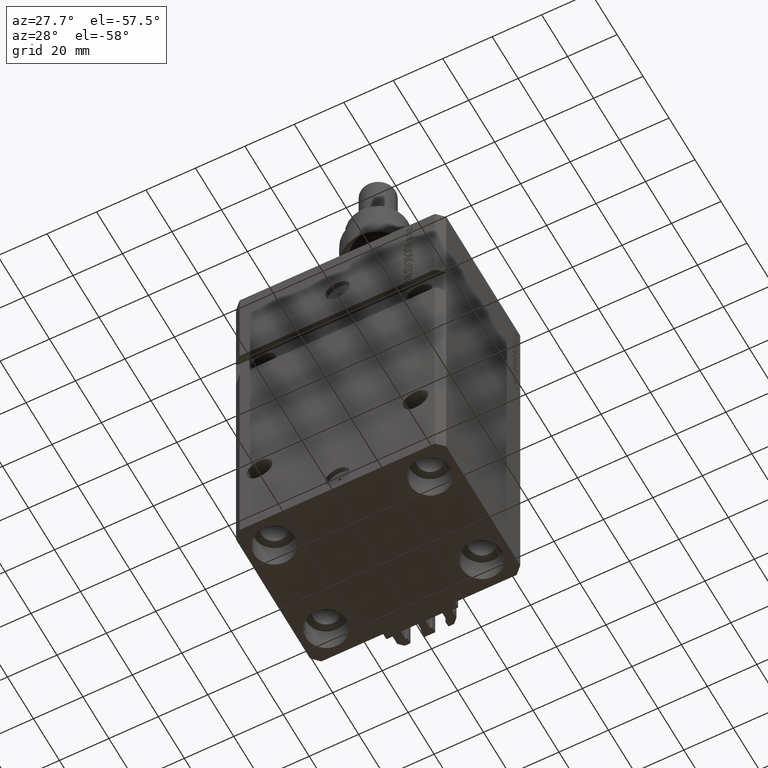
[diagram: clean part render]
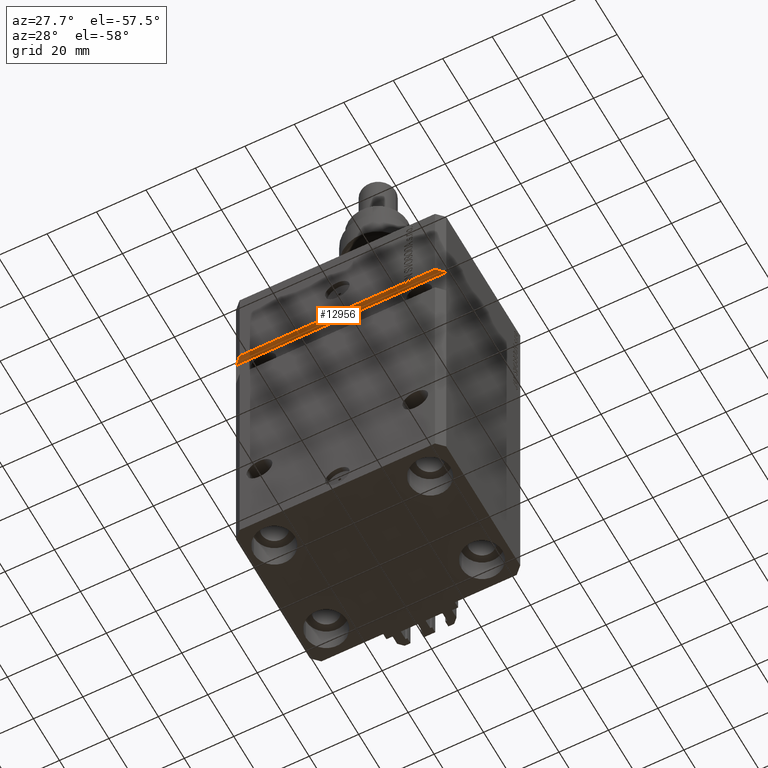
[diagram: same view with one face highlighted and labeled with its STEP entity id]
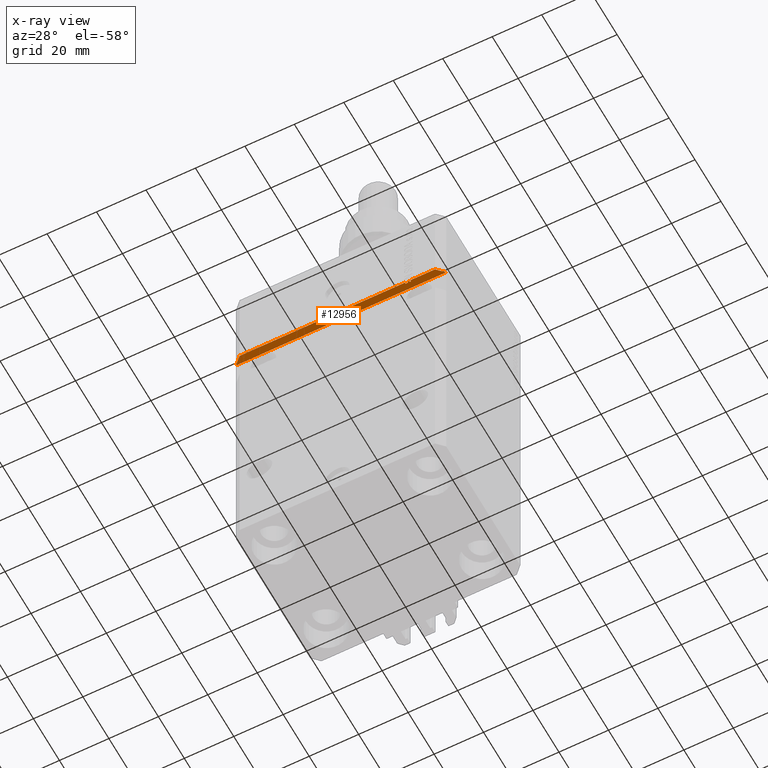
[diagram: x-ray of the same camera — body ghosted, the highlighted face saturated]
A machine part, auxiliary view. The second image highlights one B-rep face of the part: STEP entity #12956.
The next image is the same camera in x-ray: the body ghosted, the highlighted face saturated — about 0% of this face is hidden behind the body in this view.
In plain terms, the highlighted planar face has unit normal (-0, -0, 1).
Its self-contained STEP definition (entity closure, byte-faithful):
#318 = CARTESIAN_POINT ( 'NONE',  ( 2.902851328095173054E-15, -30.99999999999997868, -37.00000000000000000 ) ) ;
#450 = LINE ( 'NONE', #24657, #21044 ) ;
#2197 = VERTEX_POINT ( 'NONE', #7917 ) ;
#2637 = LINE ( 'NONE', #21955, #5223 ) ;
#3145 = DIRECTION ( 'NONE',  ( -2.352167425053553784E-16, 1.000000000000000000, -9.600847180395937970E-33 ) ) ;
#3343 = EDGE_CURVE ( 'NONE', #4759, #2197, #450, .T. ) ;
#3735 = FACE_OUTER_BOUND ( 'NONE', #23488, .T. ) ;
#4397 = EDGE_CURVE ( 'NONE', #6550, #30163, #48881, .T. ) ;
#4692 = DIRECTION ( 'NONE',  ( -1.000000000000000000, 0.000000000000000000, -8.163404592832029035E-17 ) ) ;
#4759 = VERTEX_POINT ( 'NONE', #24893 ) ;
#4836 = LINE ( 'NONE', #29547, #9715 ) ;
#5223 = VECTOR ( 'NONE', #3145, 1000.000000000000000 ) ;
#5287 = VECTOR ( 'NONE', #13719, 1000.000000000000000 ) ;
#5556 = LINE ( 'NONE', #21000, #38172 ) ;
#5601 = VECTOR ( 'NONE', #4692, 1000.000000000000000 ) ;
#5893 = CARTESIAN_POINT ( 'NONE',  ( 2.902851328095173054E-15, -30.99999999999997868, -37.00000000000000000 ) ) ;
#6119 = CARTESIAN_POINT ( 'NONE',  ( 42.50000000000001421, -31.49999999999999289, -37.00000000000000000 ) ) ;
#6550 = VERTEX_POINT ( 'NONE', #16342 ) ;
#7917 = CARTESIAN_POINT ( 'NONE',  ( 28.43744795748433418, -30.99999999999999289, -37.00000000000000000 ) ) ;
#8249 = ORIENTED_EDGE ( 'NONE', *, *, #33262, .F. ) ;
#8431 = ORIENTED_EDGE ( 'NONE', *, *, #18452, .T. ) ;
#9210 = LINE ( 'NONE', #6119, #33813 ) ;
#9695 = CARTESIAN_POINT ( 'NONE',  ( -39.50000000000001421, -31.50000000000000000, -37.00000000000000711 ) ) ;
#9715 = VECTOR ( 'NONE', #40362, 1000.000000000000000 ) ;
#9750 = VECTOR ( 'NONE', #13036, 1000.000000000000000 ) ;
#9764 = AXIS2_PLACEMENT_3D ( 'NONE', #27674, #31045, #27175 ) ;
#9965 = VECTOR ( 'NONE', #15123, 1000.000000000000000 ) ;
#10459 = LINE ( 'NONE', #14316, #33680 ) ;
#10642 = CARTESIAN_POINT ( 'NONE',  ( 29.04545454545453254, -30.99999999999999289, -37.00000000000000000 ) ) ;
#12034 = VECTOR ( 'NONE', #33970, 1000.000000000000000 ) ;
#12391 = VERTEX_POINT ( 'NONE', #36595 ) ;
#12547 = DIRECTION ( 'NONE',  ( -2.352167425053553784E-16, 1.000000000000000000, -9.600847180395937970E-33 ) ) ;
#12650 = CARTESIAN_POINT ( 'NONE',  ( -42.50000000000001421, -28.50000000000000711, -37.00000000000000711 ) ) ;
#12879 = CARTESIAN_POINT ( 'NONE',  ( 29.04545454545453254, -30.99999999999999289, -37.00000000000000000 ) ) ;
#12956 = ADVANCED_FACE ( 'NONE', ( #3735 ), #50606, .F. ) ;
#13036 = DIRECTION ( 'NONE',  ( -1.000000000000000000, 0.000000000000000000, -8.163404592832029035E-17 ) ) ;
#13241 = VERTEX_POINT ( 'NONE', #29716 ) ;
#13508 = ORIENTED_EDGE ( 'NONE', *, *, #13671, .T. ) ;
#13671 = EDGE_CURVE ( 'NONE', #31694, #45046, #10459, .T. ) ;
#13719 = DIRECTION ( 'NONE',  ( -1.000000000000000000, -1.632680918566406054E-16, -8.163404592832030268E-17 ) ) ;
#13742 = ORIENTED_EDGE ( 'NONE', *, *, #17534, .T. ) ;
#14316 = CARTESIAN_POINT ( 'NONE',  ( 42.50000000000001421, -31.49999999999999289, -37.00000000000000000 ) ) ;
#14998 = CARTESIAN_POINT ( 'NONE',  ( 29.45454545454544260, -31.49999999999999289, -37.00000000000000000 ) ) ;
#15123 = DIRECTION ( 'NONE',  ( -0.7071067811865471286, 0.7071067811865479058, -5.772398745160930101E-17 ) ) ;
#16007 = EDGE_CURVE ( 'NONE', #12391, #27717, #42425, .T. ) ;
#16342 = CARTESIAN_POINT ( 'NONE',  ( 29.45454545454544260, -30.99999999999997868, -37.00000000000000000 ) ) ;
#16870 = CARTESIAN_POINT ( 'NONE',  ( 27.36912325285895164, -30.99999999999998579, -36.99999999999999289 ) ) ;
#17534 = EDGE_CURVE ( 'NONE', #30163, #21956, #45918, .T. ) ;
#17565 = EDGE_CURVE ( 'NONE', #2197, #32790, #35630, .T. ) ;
#18452 = EDGE_CURVE ( 'NONE', #21956, #4759, #44977, .T. ) ;
#19839 = ORIENTED_EDGE ( 'NONE', *, *, #42226, .T. ) ;
#20355 = CARTESIAN_POINT ( 'NONE',  ( 29.04545454545453254, -31.49999999999999289, -37.00000000000000000 ) ) ;
#21000 = CARTESIAN_POINT ( 'NONE',  ( 39.50000000000000000, -31.50000000000000711, -37.00000000000000711 ) ) ;
#21044 = VECTOR ( 'NONE', #12547, 1000.000000000000000 ) ;
#21259 = DIRECTION ( 'NONE',  ( -0.7071067811865483499, -0.7071067811865466846, -5.772398745160942427E-17 ) ) ;
#21955 = CARTESIAN_POINT ( 'NONE',  ( 29.45454545454544260, -30.99999999999999289, -37.00000000000000000 ) ) ;
#21956 = VERTEX_POINT ( 'NONE', #20355 ) ;
#22467 = CARTESIAN_POINT ( 'NONE',  ( 42.50000000000001421, -28.49999999999999289, -37.00000000000000000 ) ) ;
#23340 = EDGE_CURVE ( 'NONE', #13241, #12391, #9210, .T. ) ;
#23488 = EDGE_LOOP ( 'NONE', ( #48289, #13508, #41526, #45656, #13742, #8431, #34846, #49594, #19839, #36094, #50614, #8249 ) ) ;
#24110 = CARTESIAN_POINT ( 'NONE',  ( 39.50000000000000711, -31.49999999999999289, -37.00000000000000000 ) ) ;
#24657 = CARTESIAN_POINT ( 'NONE',  ( 28.43744795748433418, -30.99999999999999289, -37.00000000000000000 ) ) ;
#24893 = CARTESIAN_POINT ( 'NONE',  ( 28.43744795748431287, -31.49999999999999289, -37.00000000000000000 ) ) ;
#25696 = DIRECTION ( 'NONE',  ( -1.000000000000000000, -1.632680918566406054E-16, -8.163404592832030268E-17 ) ) ;
#26352 = DIRECTION ( 'NONE',  ( 2.352167425053553784E-16, -1.000000000000000000, 9.600847180395937970E-33 ) ) ;
#27175 = DIRECTION ( 'NONE',  ( 1.000000000000000000, 0.000000000000000000, 8.163404592832029035E-17 ) ) ;
#27674 = CARTESIAN_POINT ( 'NONE',  ( 42.50000000000001421, -28.49999999999999289, -37.00000000000000000 ) ) ;
#27717 = VERTEX_POINT ( 'NONE', #12650 ) ;
#29547 = CARTESIAN_POINT ( 'NONE',  ( 27.36912325285897296, -30.99999999999999289, -37.00000000000000000 ) ) ;
#29716 = CARTESIAN_POINT ( 'NONE',  ( 27.36912325285902270, -31.49999999999999289, -37.00000000000000711 ) ) ;
#30040 = DIRECTION ( 'NONE',  ( -1.000000000000000000, -1.632680918566406054E-16, -8.163404592832030268E-17 ) ) ;
#30163 = VERTEX_POINT ( 'NONE', #12879 ) ;
#31045 = DIRECTION ( 'NONE',  ( -8.163404592832029035E-17, -9.600847180396128185E-33, 1.000000000000000000 ) ) ;
#31694 = VERTEX_POINT ( 'NONE', #24110 ) ;
#32116 = EDGE_CURVE ( 'NONE', #45046, #6550, #2637, .T. ) ;
#32790 = VERTEX_POINT ( 'NONE', #16870 ) ;
#32881 = EDGE_CURVE ( 'NONE', #41339, #31694, #5556, .T. ) ;
#33262 = EDGE_CURVE ( 'NONE', #41339, #27717, #49003, .T. ) ;
#33680 = VECTOR ( 'NONE', #30040, 1000.000000000000000 ) ;
#33813 = VECTOR ( 'NONE', #25696, 1000.000000000000000 ) ;
#33970 = DIRECTION ( 'NONE',  ( -1.000000000000000000, 0.000000000000000000, -8.163404592832029035E-17 ) ) ;
#34846 = ORIENTED_EDGE ( 'NONE', *, *, #3343, .T. ) ;
#35233 = CARTESIAN_POINT ( 'NONE',  ( -42.50000000000000711, -28.49999999999999645, -37.00000000000000711 ) ) ;
#35630 = LINE ( 'NONE', #318, #5601 ) ;
#36094 = ORIENTED_EDGE ( 'NONE', *, *, #23340, .T. ) ;
#36595 = CARTESIAN_POINT ( 'NONE',  ( -39.50000000000000000, -31.50000000000000711, -37.00000000000000711 ) ) ;
#38172 = VECTOR ( 'NONE', #21259, 1000.000000000000000 ) ;
#40362 = DIRECTION ( 'NONE',  ( 2.352167425053553291E-16, -1.000000000000000000, 9.600847180395936601E-33 ) ) ;
#41339 = VERTEX_POINT ( 'NONE', #49097 ) ;
#41526 = ORIENTED_EDGE ( 'NONE', *, *, #32116, .T. ) ;
#42226 = EDGE_CURVE ( 'NONE', #32790, #13241, #4836, .T. ) ;
#42425 = LINE ( 'NONE', #35233, #9965 ) ;
#44977 = LINE ( 'NONE', #9695, #9750 ) ;
#45046 = VERTEX_POINT ( 'NONE', #14998 ) ;
#45656 = ORIENTED_EDGE ( 'NONE', *, *, #4397, .T. ) ;
#45918 = LINE ( 'NONE', #10642, #50000 ) ;
#48289 = ORIENTED_EDGE ( 'NONE', *, *, #32881, .T. ) ;
#48881 = LINE ( 'NONE', #5893, #12034 ) ;
#49003 = LINE ( 'NONE', #22467, #5287 ) ;
#49097 = CARTESIAN_POINT ( 'NONE',  ( 42.50000000000001421, -28.49999999999999289, -37.00000000000000000 ) ) ;
#49594 = ORIENTED_EDGE ( 'NONE', *, *, #17565, .T. ) ;
#50000 = VECTOR ( 'NONE', #26352, 1000.000000000000000 ) ;
#50606 = PLANE ( 'NONE',  #9764 ) ;
#50614 = ORIENTED_EDGE ( 'NONE', *, *, #16007, .T. ) ;